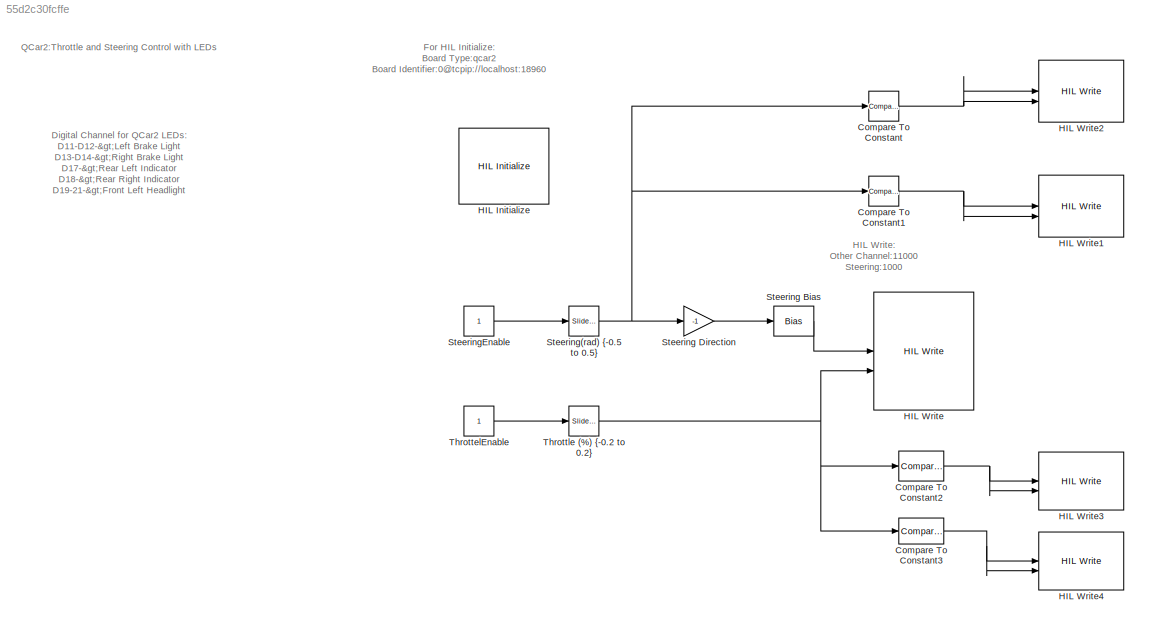
MODEL slx_55d2c30fcffe
KIND model
CONFIG AbsTol = auto
CONFIG EnableMultiTasking = on
CONFIG FixedStep = 0.002
CONFIG MaxStep = auto
CONFIG MinStep = auto
CONFIG RelTol = 1e-3
CONFIG SampleTimeConstraint = Unconstrained
CONFIG SolverName = FixedStepDiscrete
CONFIG StartTime = 0.0
CONFIG StopTime = inf
BLOCK [Reference] Compare To Constant  REF=simulink/Logic and Bit
Operations/Compare
To Constant
  SourceBlock = simulink/Logic and Bit\nOperations/Compare\nTo Constant
  SourceType = Compare To Constant
BLOCK [Reference] Compare To Constant1  REF=simulink/Logic and Bit
Operations/Compare
To Constant
  SourceBlock = simulink/Logic and Bit\nOperations/Compare\nTo Constant
  SourceType = Compare To Constant
BLOCK [Reference] Compare To Constant2  REF=simulink/Logic and Bit
Operations/Compare
To Constant
  SourceBlock = simulink/Logic and Bit\nOperations/Compare\nTo Constant
  SourceType = Compare To Constant
BLOCK [Reference] Compare To Constant3  REF=simulink/Logic and Bit
Operations/Compare
To Constant
  SourceBlock = simulink/Logic and Bit\nOperations/Compare\nTo Constant
  SourceType = Compare To Constant
BLOCK [Reference] HIL Initialize  REF=quarc_library/Data Acquisition/Generic/Configuration/HIL Initialize
  AttributesFormatString = %<object_name> (%<board_type>-%<board_number>)
  SourceBlock = quarc_library/Data Acquisition/Generic/Configuration/HIL Initialize
  SourceProductName = QUARC Targets
  SourceType = HIL Initialize
  UserDataPersistent = on
BLOCK [Reference] HIL Write  REF=quarc_library/Data Acquisition/Generic/Immediate I//O/HIL Write
  AttributesFormatString = (%<object_name>)
  SourceBlock = quarc_library/Data Acquisition/Generic/Immediate I//O/HIL Write
  SourceProductName = QUARC Targets
  SourceType = HIL Write
  UserDataPersistent = on
BLOCK [Reference] HIL Write1  REF=quarc_library/Data Acquisition/Generic/Immediate I//O/HIL Write
  AttributesFormatString = (%<object_name>)
  SourceBlock = quarc_library/Data Acquisition/Generic/Immediate I//O/HIL Write
  SourceProductName = QUARC Targets
  SourceType = HIL Write
  UserDataPersistent = on
BLOCK [Reference] HIL Write2  REF=quarc_library/Data Acquisition/Generic/Immediate I//O/HIL Write
  AttributesFormatString = (%<object_name>)
  SourceBlock = quarc_library/Data Acquisition/Generic/Immediate I//O/HIL Write
  SourceProductName = QUARC Targets
  SourceType = HIL Write
  UserDataPersistent = on
BLOCK [Reference] HIL Write3  REF=quarc_library/Data Acquisition/Generic/Immediate I//O/HIL Write
  AttributesFormatString = (%<object_name>)
  SourceBlock = quarc_library/Data Acquisition/Generic/Immediate I//O/HIL Write
  SourceProductName = QUARC Targets
  SourceType = HIL Write
  UserDataPersistent = on
BLOCK [Reference] HIL Write4  REF=quarc_library/Data Acquisition/Generic/Immediate I//O/HIL Write
  AttributesFormatString = (%<object_name>)
  SourceBlock = quarc_library/Data Acquisition/Generic/Immediate I//O/HIL Write
  SourceProductName = QUARC Targets
  SourceType = HIL Write
  UserDataPersistent = on
BLOCK [Bias] Steering Bias
  Bias = -0.05
  SaturateOnIntegerOverflow = off
BLOCK [Gain] Steering Direction
  Gain = -1
BLOCK [Reference] Steering(rad) {-0.5 to 0.5}   REF=simulink/Math
Operations/Slider
Gain
  SourceBlock = simulink/Math\nOperations/Slider\nGain
  SourceType = Slider Gain
BLOCK [Constant] SteeringEnable
BLOCK [Constant] ThrottelEnable
BLOCK [Reference] Throttle (%) {-0.2 to 0.2}  REF=simulink/Math
Operations/Slider
Gain
  SourceBlock = simulink/Math\nOperations/Slider\nGain
  SourceType = Slider Gain
ANNOTATION (root): Digital Channel for QCar2 LEDs: D11-D12->Left Brake Light D13-D14->Right Brake Light D17->Rear Left Indicator D18->Rear Right Indicator D19-21->Front Left Headlight D22-24->Front Right Headlight D25->Front Left Indicator D26->Front Right Indicator
ANNOTATION (root): QCar2:Throttle and Steering Control with LEDs
ANNOTATION (root): For HIL Initialize: Board Type:qcar2 Board Identifier:0@tcpip://localhost:18960
ANNOTATION (root): HIL Write: Other Channel:11000 Steering:1000
NET Compare To Constant1:1 -> HIL Write1:1, HIL Write1:2
NET Compare To Constant2:1 -> HIL Write3:1, HIL Write3:2
NET Compare To Constant3:1 -> HIL Write4:1, HIL Write4:2
NET Compare To Constant:1 -> HIL Write2:1, HIL Write2:2
LINE Steering Bias:1 -> HIL Write:1
LINE Steering Direction:1 -> Steering Bias:1
NET Steering(rad) {-0.5 to 0.5} :1 -> Compare To Constant1:1, Compare To Constant:1, Steering Direction:1
LINE SteeringEnable:1 -> Steering(rad) {-0.5 to 0.5} :1
LINE ThrottelEnable:1 -> Throttle (%) {-0.2 to 0.2}:1
NET Throttle (%) {-0.2 to 0.2}:1 -> Compare To Constant2:1, Compare To Constant3:1, HIL Write:2
note: NET lines group one-source signal fan-out (src -> all destinations, sorted); 1:1 wires keep LINE
